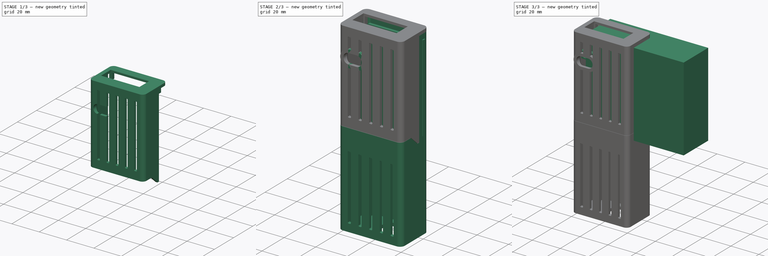
[diagram: build sequence overview — one tinted view per stage of 3, left to right]
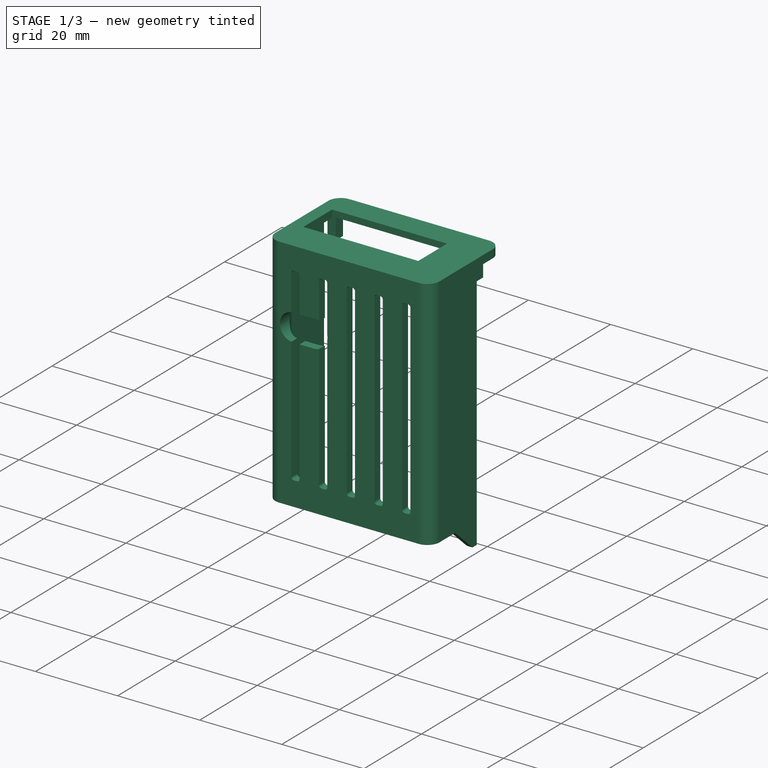
[diagram: stage 1 of 3 — iso view after this stage's code; geometry added in this stage tinted green]
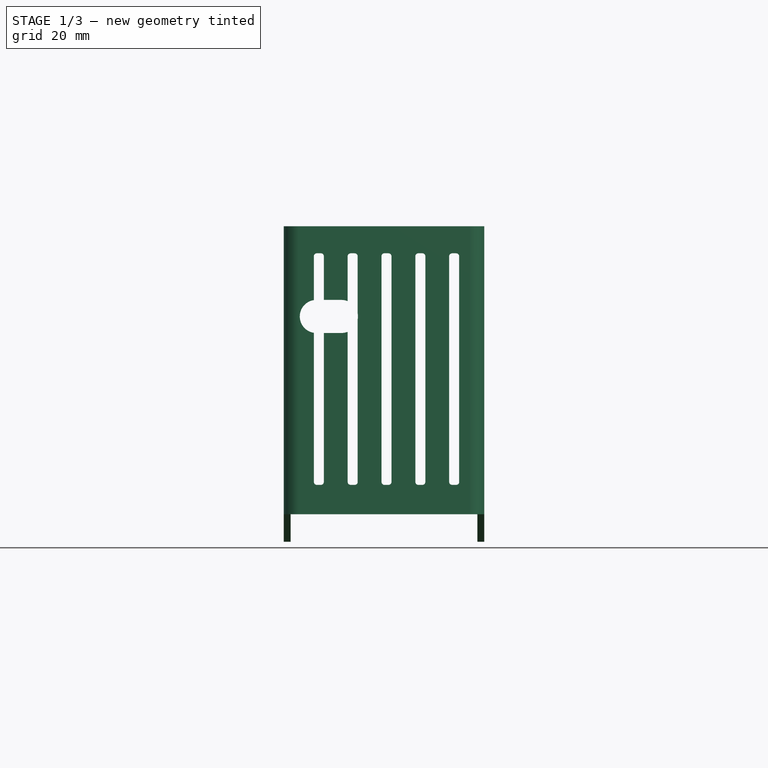
[diagram: stage 1 of 3 — front view after this stage's code; geometry added in this stage tinted green]
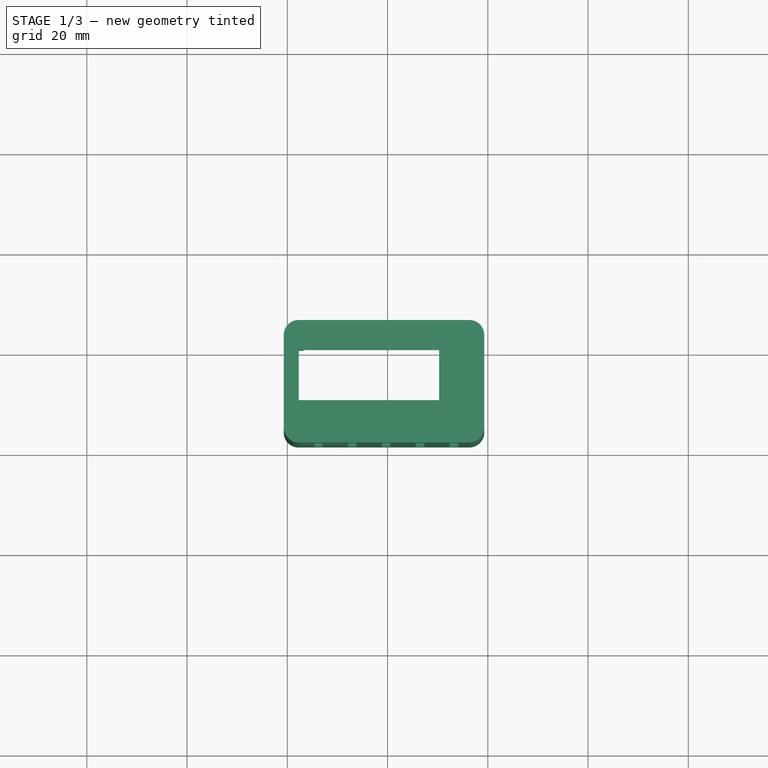
[diagram: stage 1 of 3 — top view after this stage's code; geometry added in this stage tinted green]
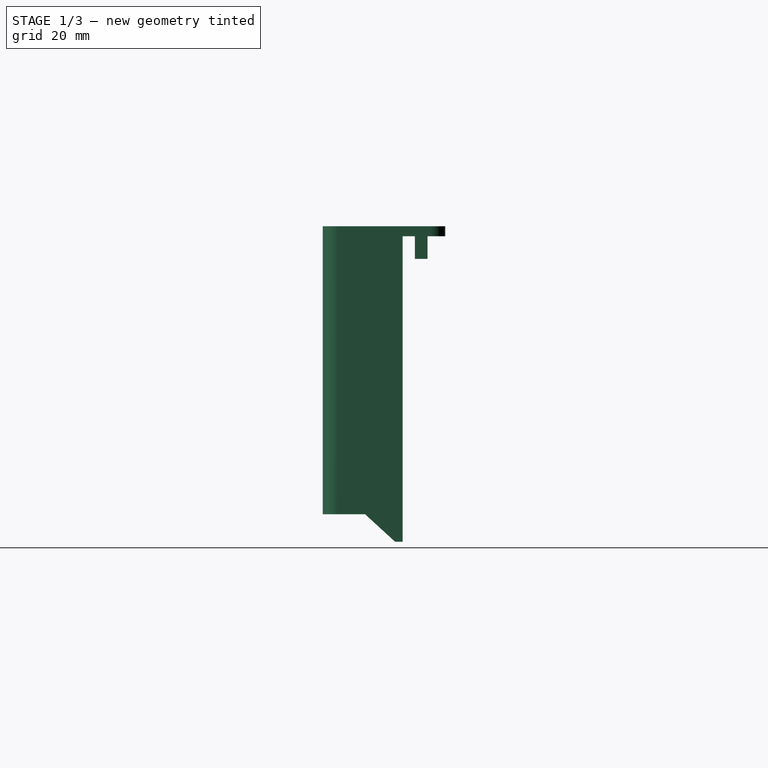
[diagram: stage 1 of 3 — right view after this stage's code; geometry added in this stage tinted green]
FCSTD DOCUMENT  (FreeCAD 0.16R6348 (Git))
Label: EmonEthernet
License: CreativeCommons Attribution-ShareAlike
LicenseURL: http://creativecommons.org/licenses/by-sa/4.0/
objects: Sketcher::SketchObject×5, Part::Feature×5, PartDesign::Pad×3, PartDesign::Pocket×2, Part::Box×1, Part::Compound×1
note: 22 computed .brp shape members not serialized (recipe doc carries the construction recipe); baked Part::Feature solids carry a one-line shape summary decoded from their .brp

FEATURE [Sketcher::SketchObject] Sketch002
  ExternalGeometry = -> [Pad007010001]
  Placement = pos=(-20.7123,1.89864,62.5115) rot=(0,0,1;3.14159rad)
  Support = -> Pad007010001 [Face1]
  sketch-geometry (5):
    g0: LineSegment StartX=-11 StartY=7.98674 StartZ=0 EndX=-11 EndY=11.9867 EndZ=0
    g1: LineSegment StartX=-11 StartY=11.9867 StartZ=0 EndX=17 EndY=11.9867 EndZ=0
    g2: LineSegment StartX=17 StartY=11.9867 StartZ=0 EndX=17 EndY=1.98674 EndZ=0
    g3: LineSegment StartX=17 StartY=1.98674 StartZ=0 EndX=-11 EndY=1.98674 EndZ=0
    g4: LineSegment StartX=-11 StartY=1.98674 StartZ=0 EndX=-11 EndY=7.98674 EndZ=0
  constraints (16):
    c: Vertical(g0)
    c: Coincident(g0,g1)
    c: Horizontal(g1)
    c: Coincident(g1,g2)
    c: Vertical(g2)
    c: Coincident(g2,g3)
    c: Horizontal(g3)
    c: Coincident(g3,g4)
    c: Vertical(g4)
    c: DistanceX(g2,g-3) = 3
    c: DistanceY(g2,g-3) = -3
    c: DistanceY(g4) = 6
    c: DistanceY(g2) = -10
    c: DistanceY(g0) = 4
    c: DistanceX(g3) = -28
    c: Coincident(g0,g4)
FEATURE [PartDesign::Pocket] Pocket
  Length = 5
  Placement = pos=(-20.7123,1.89864,-30.9885) rot=(0.57735,0.57735,-0.57735;2.0944rad)
  Sketch = -> Sketch002
  Type = 0
FEATURE [Sketcher::SketchObject] Sketch003
  ExternalGeometry = -> [Pocket]
  Placement = pos=(-20.7123,-18.5464,-30.9885) rot=(0.57735,0.57735,-0.57735;2.0944rad)
  Support = -> Pocket [Face6]
  sketch-geometry (4):
    g0: ArcOfCircle CenterX=-75.5 CenterY=-13.5 CenterZ=0 NormalX=0 NormalY=0 NormalZ=1 Radius=3.3 StartAngle=3.14159 EndAngle=6.28319
    g1: ArcOfCircle CenterX=-75.5 CenterY=-8.5 CenterZ=0 NormalX=0 NormalY=0 NormalZ=1 Radius=3.3 StartAngle=0 EndAngle=3.14159
    g2: LineSegment StartX=-72.2 StartY=-13.5 StartZ=0 EndX=-72.2 EndY=-8.5 EndZ=0
    g3: LineSegment StartX=-78.8 StartY=-13.5 StartZ=0 EndX=-78.8 EndY=-8.5 EndZ=0
  constraints (10):
    c: Tangent(g0,g3) = 1.5708
    c: Tangent(g0,g2) = -1.5708
    c: Tangent(g2,g1) = -1.5708
    c: Tangent(g3,g1) = 1.5708
    c: Vertical(g2)
    c: Equal(g0,g1)
    c: DistanceX(g-3,g1) = 12.6
    c: DistanceY(g1) = -8.5
    c: Radius(g1) = 3.3
    c: DistanceY(g2) = 5
FEATURE [PartDesign::Pocket] Pocket001013002  label="cap_scews_pocket"
  Length = 5
  Placement = pos=(-20.7123,1.89864,-30.9885) rot=(0.57735,0.57735,-0.57735;2.0944rad)
  Sketch = -> Sketch003
  Type = 0
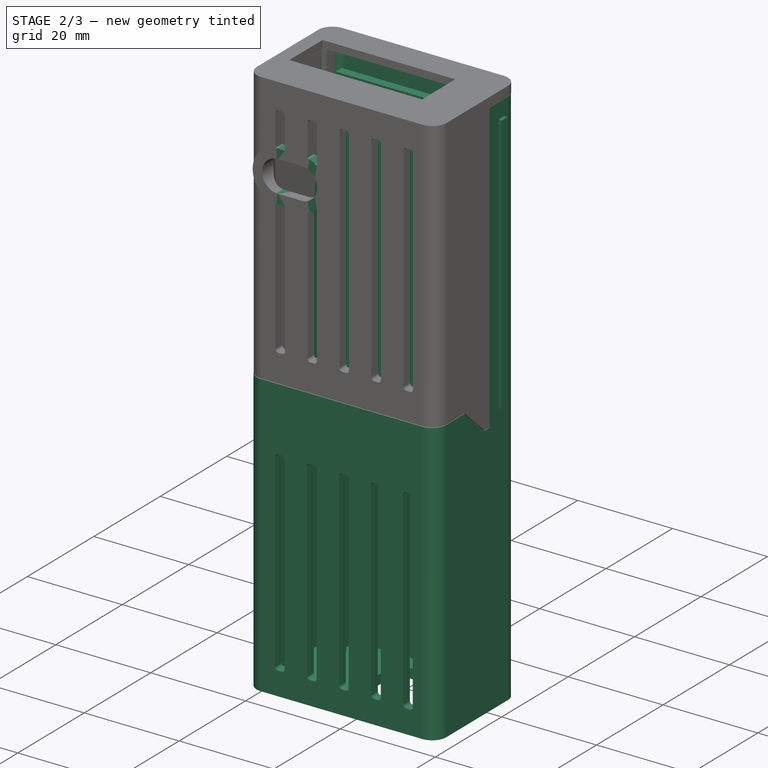
[diagram: stage 2 of 3 — iso view after this stage's code; geometry added in this stage tinted green]
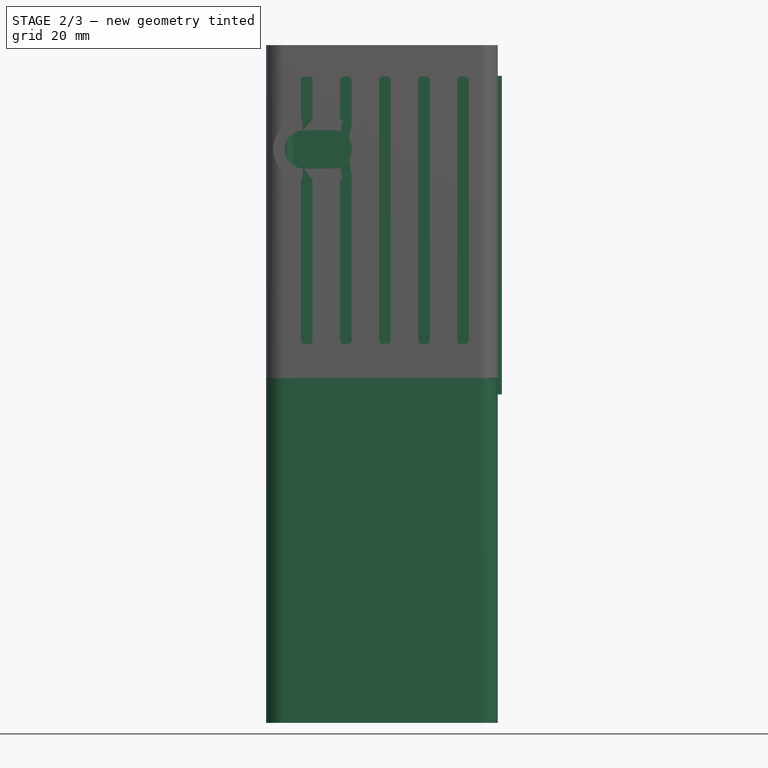
[diagram: stage 2 of 3 — front view after this stage's code; geometry added in this stage tinted green]
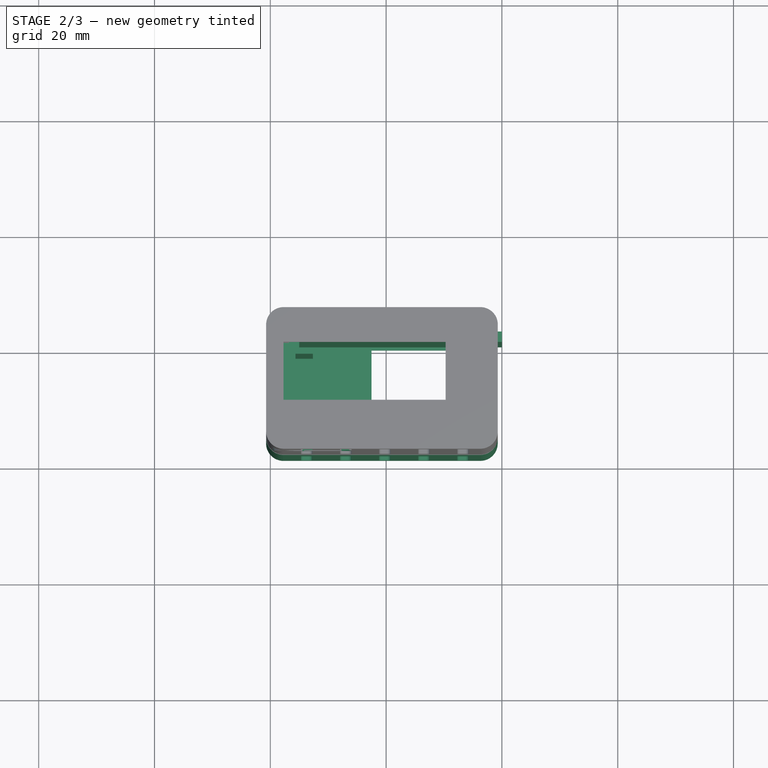
[diagram: stage 2 of 3 — top view after this stage's code; geometry added in this stage tinted green]
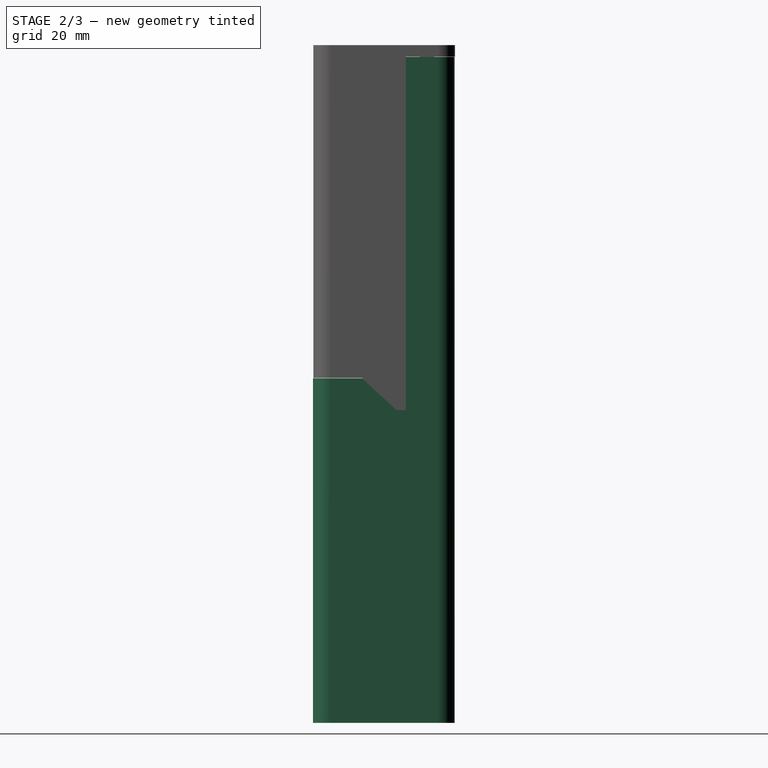
[diagram: stage 2 of 3 — right view after this stage's code; geometry added in this stage tinted green]
FEATURE [Part::Feature] Fusion001  label="nano"
  Placement = pos=(-13.2858,-1.63931,38.0215) rot=(0,0,1;3.14159rad)
  shape: bbox 17.78 x 17.97 x 44.84 mm, 1500 faces (baked)
FEATURE [Part::Box] Box  label="peg"
  Height = 55
  Length = 35
  Placement = pos=(-35,0,2.2) rot=(0,0,1;0rad)
  Width = 1.8
FEATURE [Sketcher::SketchObject] Sketch001
  ExternalGeometry = -> [Pocket001013001]
  Placement = pos=(-20.7263,1.83837,-54.5226) rot=(1,0,0;3.14159rad)
  Support = -> Pocket001013001 [Face2]
  sketch-geometry (1):
    g0: Circle CenterX=-9.50159 CenterY=10.2107 CenterZ=0 NormalX=0 NormalY=0 NormalZ=1 Radius=5.64
  constraints (2):
    c: Coincident(g0,g-3)
    c: Tangent(g0,g-3)
FEATURE [PartDesign::Pad] Pad007010002  label="ethernet_case"
  Length = 2
  Length2 = 100
  Placement = pos=(-20.7263,1.83837,-31.0226) rot=(0.57735,0.57735,-0.57735;2.0944rad)
  Reversed = true
  Sketch = -> Sketch001
  Type = 0
FEATURE [Sketcher::SketchObject] Sketch004
  ExternalGeometry = -> [Pocket001013002]
  Placement = pos=(-20.7123,-18.5464,-30.9885) rot=(0.57735,0.57735,-0.57735;2.0944rad)
  Support = -> Pocket001013002 [Face6]
  sketch-geometry (8):
    g0: ArcOfCircle CenterX=-75.5 CenterY=-8.5 CenterZ=0 NormalX=0 NormalY=0 NormalZ=1 Radius=3.3 StartAngle=0 EndAngle=3.14159
    g1: ArcOfCircle CenterX=-75.5 CenterY=-13.5 CenterZ=0 NormalX=0 NormalY=0 NormalZ=1 Radius=3.3 StartAngle=3.14159 EndAngle=6.28319
    g2: LineSegment StartX=-78.8 StartY=-8.5 StartZ=0 EndX=-78.8 EndY=-13.5 EndZ=0
    g3: LineSegment StartX=-72.2 StartY=-8.5 StartZ=0 EndX=-72.2 EndY=-13.5 EndZ=0
    g4: ArcOfCircle CenterX=-75.5 CenterY=-8.5 CenterZ=0 NormalX=0 NormalY=0 NormalZ=1 Radius=5.3 StartAngle=0 EndAngle=3.14159
    g5: ArcOfCircle CenterX=-75.5 CenterY=-13.5 CenterZ=0 NormalX=0 NormalY=0 NormalZ=1 Radius=5.3 StartAngle=3.14159 EndAngle=6.28319
    g6: LineSegment StartX=-80.8 StartY=-8.5 StartZ=0 EndX=-80.8 EndY=-13.5 EndZ=0
    g7: LineSegment StartX=-70.2 StartY=-8.5 StartZ=0 EndX=-70.2 EndY=-13.5 EndZ=0
  constraints (18):
    c: Tangent(g0,g3) = 1.5708
    c: Tangent(g0,g2) = -1.5708
    c: Tangent(g2,g1) = -1.5708
    c: Vertical(g2)
    c: Equal(g0,g1)
    c: Coincident(g3,g1)
    c: Vertical(g3)
    c: Coincident(g0,g-7)
    c: Coincident(g-5,g1)
    c: Tangent(g4,g7) = 1.5708
    c: Tangent(g4,g6) = -1.5708
    c: Tangent(g6,g5) = -1.5708
    c: Tangent(g7,g5) = 1.5708
    c: Vertical(g6)
    c: Equal(g4,g5)
    c: Coincident(g4,g0)
    c: Coincident(g1,g5)
    c: DistanceX(g4,g0) = -2
FEATURE [PartDesign::Pad] Pad007010003  label="cap_modbus_screws"
  Length = 2
  Length2 = 100
  Placement = pos=(-20.7123,1.89864,-30.9885) rot=(0.57735,0.57735,-0.57735;2.0944rad)
  Reversed = true
  Sketch = -> Sketch004
  Type = 0
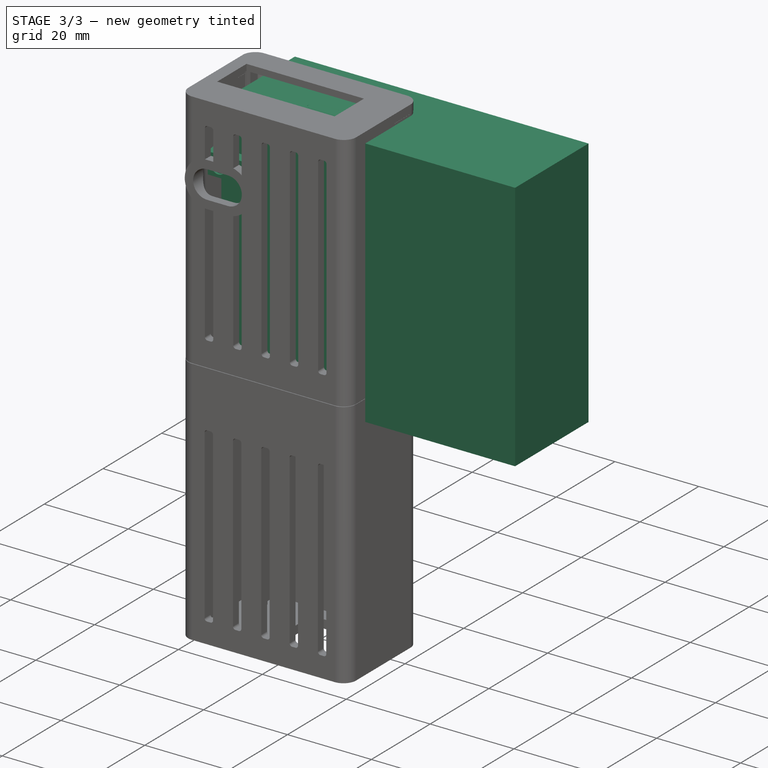
[diagram: stage 3 of 3 — iso view after this stage's code; geometry added in this stage tinted green]
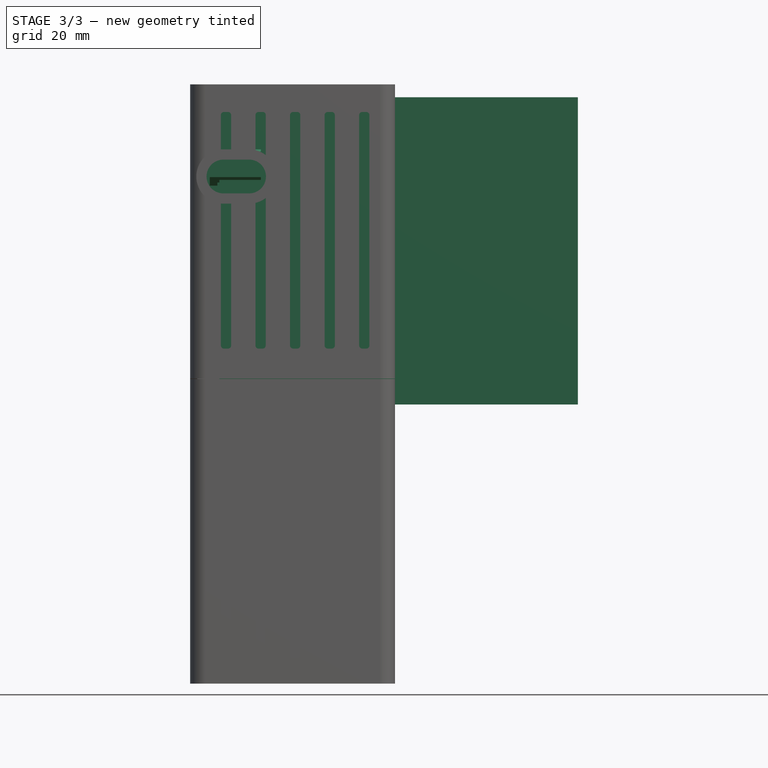
[diagram: stage 3 of 3 — front view after this stage's code; geometry added in this stage tinted green]
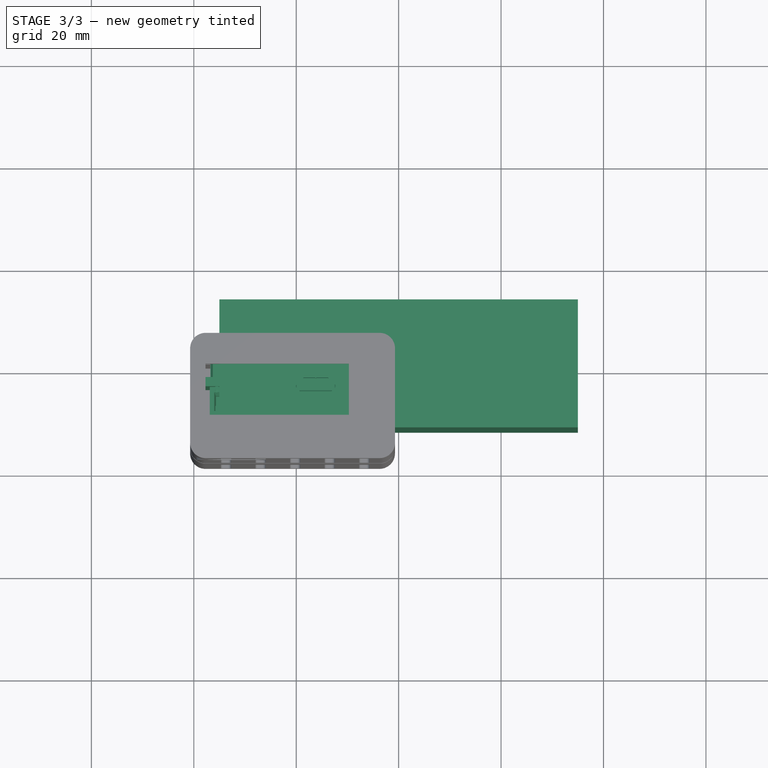
[diagram: stage 3 of 3 — top view after this stage's code; geometry added in this stage tinted green]
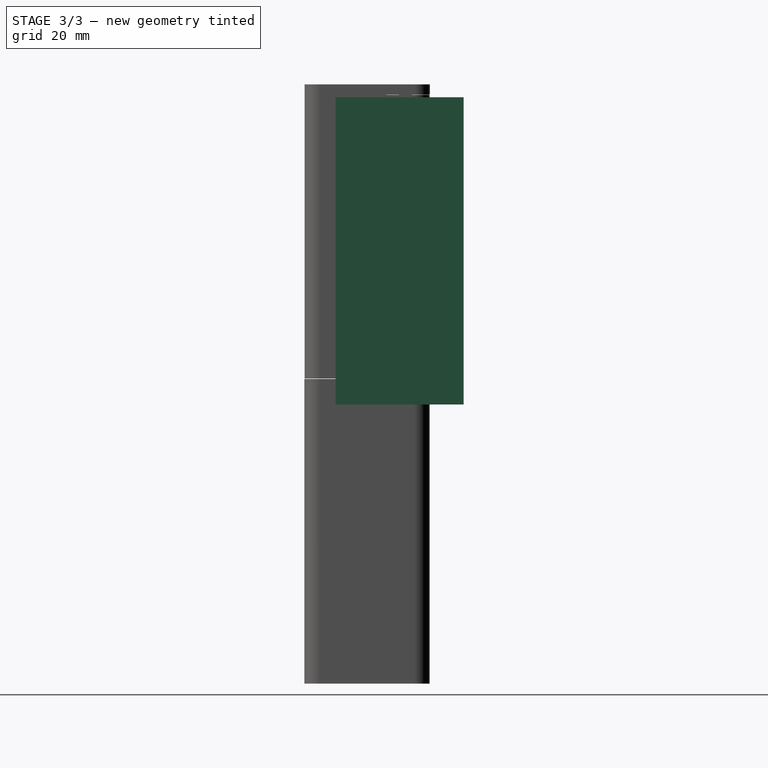
[diagram: stage 3 of 3 — right view after this stage's code; geometry added in this stage tinted green]
FEATURE [Sketcher::SketchObject] Sketch
  sketch-geometry (4):
    g0: LineSegment StartX=-35 StartY=12.5 StartZ=0 EndX=35 EndY=12.5 EndZ=0
    g1: LineSegment StartX=35 StartY=12.5 StartZ=0 EndX=35 EndY=-12.5 EndZ=0
    g2: LineSegment StartX=35 StartY=-12.5 StartZ=0 EndX=-35 EndY=-12.5 EndZ=0
    g3: LineSegment StartX=-35 StartY=-12.5 StartZ=0 EndX=-35 EndY=12.5 EndZ=0
  constraints (12):
    c: Coincident(g0,g1)
    c: Coincident(g1,g2)
    c: Coincident(g2,g3)
    c: Coincident(g3,g0)
    c: Horizontal(g0)
    c: Horizontal(g2)
    c: Vertical(g1)
    c: Vertical(g3)
    c: Symmetric(g1,g0,g-1)
    c: Symmetric(g0,g0,g-2)
    c: DistanceX(g0) = 70
    c: DistanceY(g1) = -25
FEATURE [PartDesign::Pad] Pad
  Length = 60
  Length2 = 100
  Sketch = -> Sketch
  Type = 0
FEATURE [Part::Feature] Fusion002  label="rs485"
  Placement = pos=(-29.0046,-2.56978,34.0158) rot=(1,0,0;1.5708rad)
  shape: bbox 13 x 20.07 x 44 mm, 428 faces, 8 solids (baked)
FEATURE [Part::Feature] Fusion003001  label="ethernet_board"
  Placement = pos=(-18.2344,-1.92954e-06,-26.1216) rot=(0.57735,0.57735,-0.57735;2.0944rad)
  shape: bbox 29.75 x 17.28 x 53.08 mm, 526 faces, 12 solids (baked)
FEATURE [Part::Feature] Pad007010001  label="case_ethernet_cap"
  Placement = pos=(-20.7123,1.89864,-30.9885) rot=(0.57735,0.57735,-0.57735;2.0944rad)
  shape: bbox 40 x 24.46 x 62.95 mm, 85 faces (baked)
FEATURE [Part::Feature] Pocket001013001  label="case_ethernet"
  Placement = pos=(-20.7263,1.83837,-31.0226) rot=(0.57735,0.57735,-0.57735;2.0944rad)
  shape: bbox 40 x 24.46 x 115 mm, 97 faces (baked)
FEATURE [Part::Compound] Compound  label="modbus_module"
  Links = -> [Fusion001,Box,Fusion002]
  Placement = pos=(-2.89442,2.1609e-05,-1.15777) rot=(0,0,1;0rad)
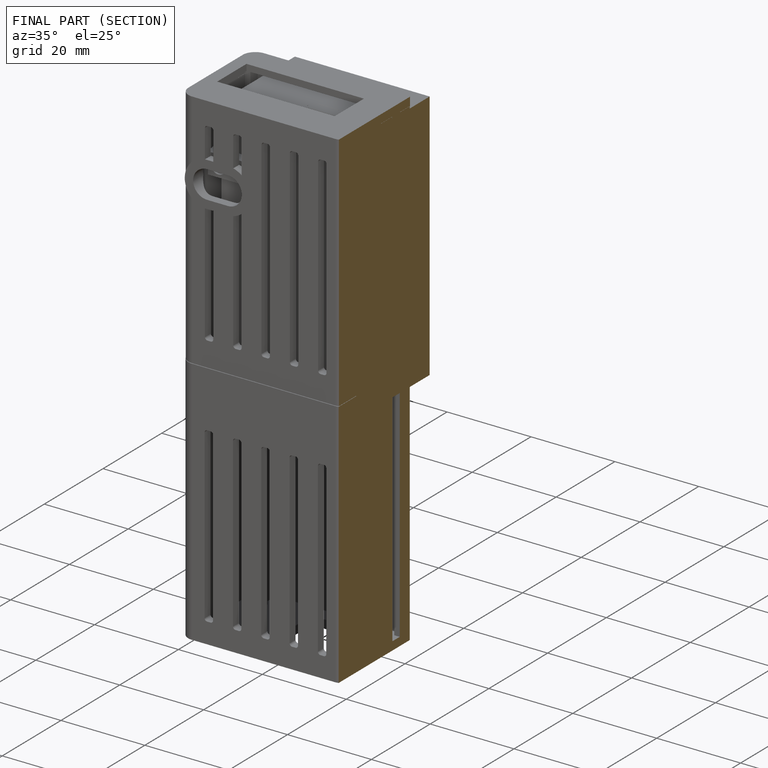
[diagram: finished part — half-section view (interior)]
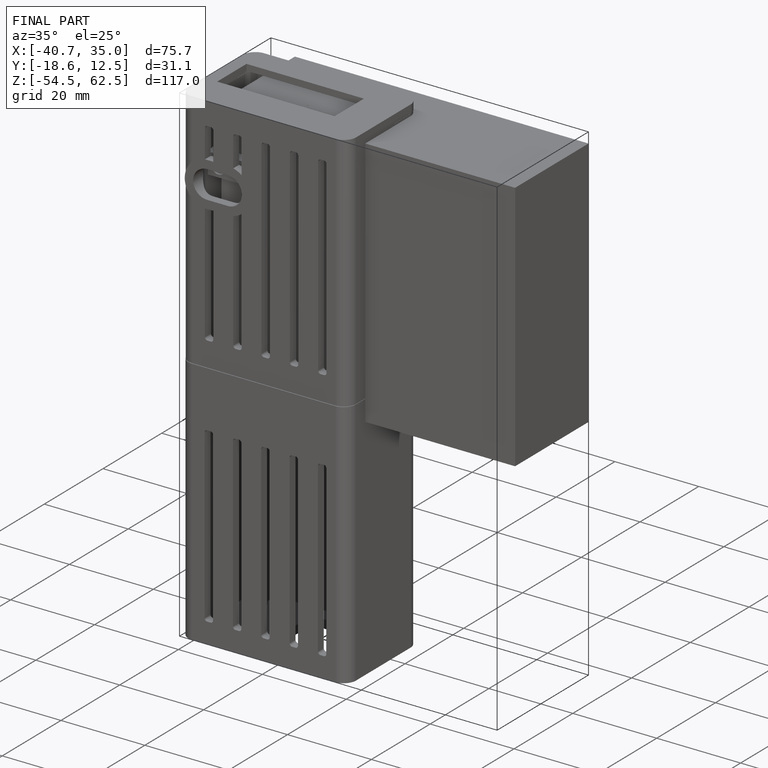
[diagram: finished part — iso view with bounding-box wireframe]
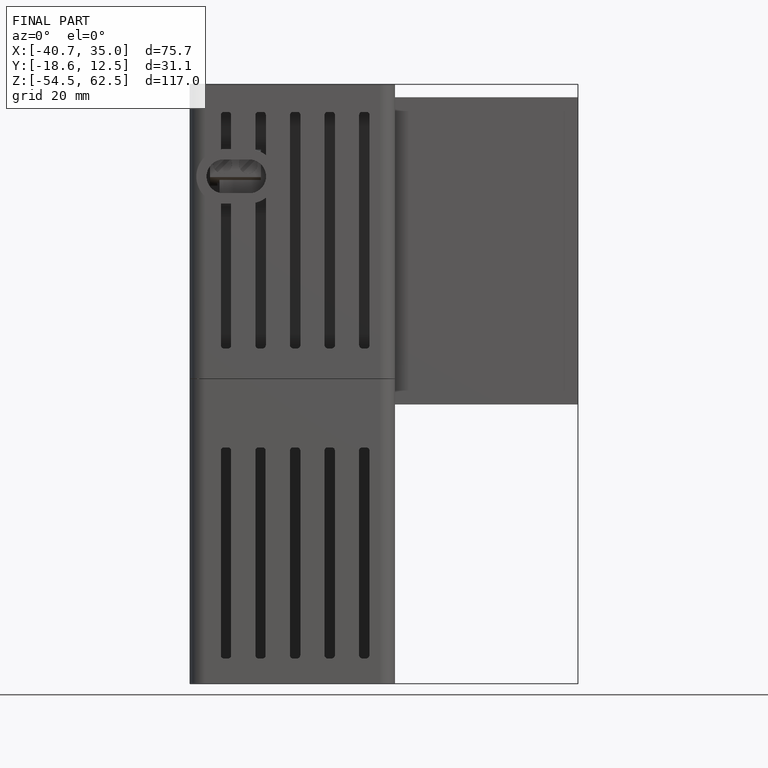
[diagram: finished part — front view with bounding-box wireframe]
